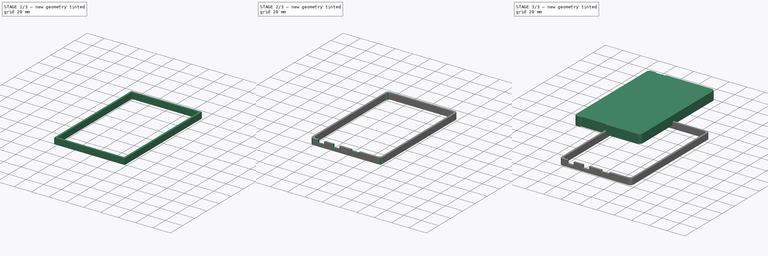
[diagram: build sequence overview — one tinted view per stage of 3, left to right]
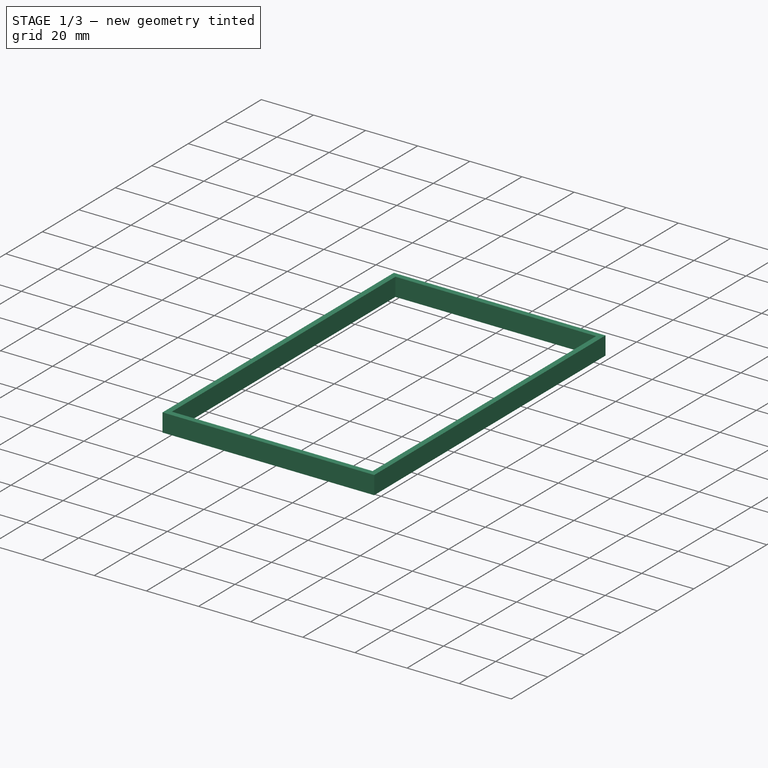
[diagram: stage 1 of 3 — iso view after this stage's code; geometry added in this stage tinted green]
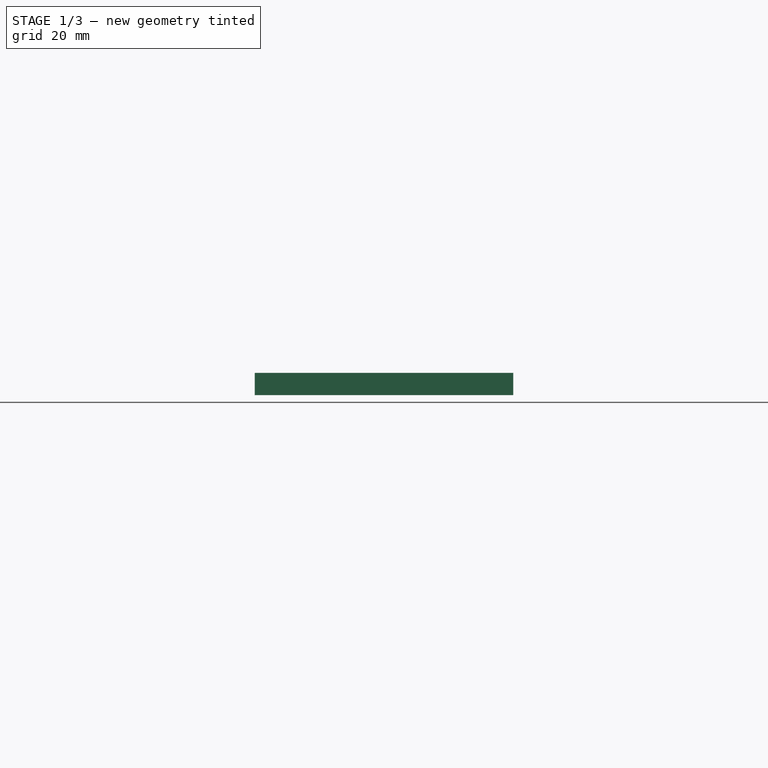
[diagram: stage 1 of 3 — front view after this stage's code; geometry added in this stage tinted green]
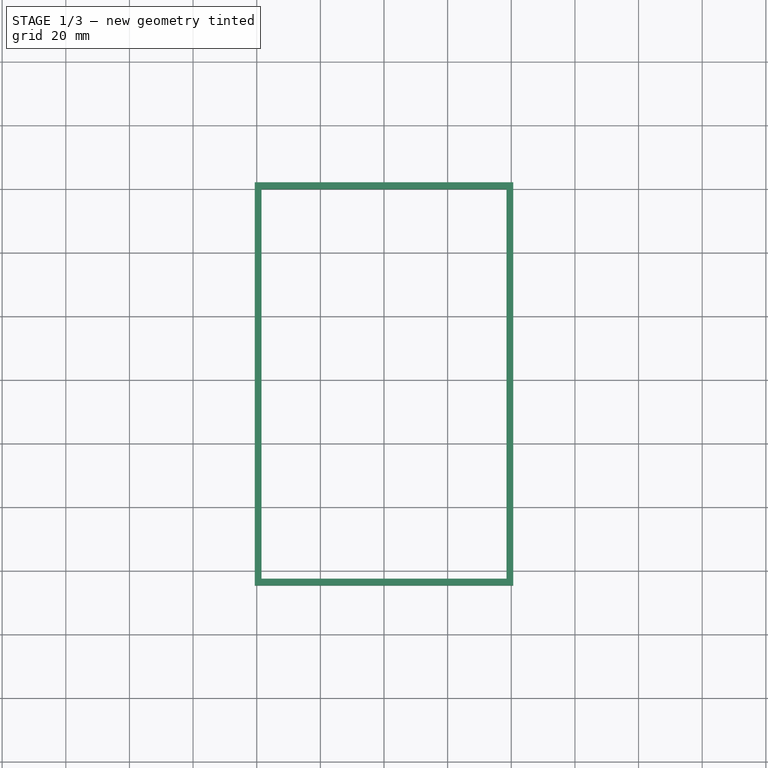
[diagram: stage 1 of 3 — top view after this stage's code; geometry added in this stage tinted green]
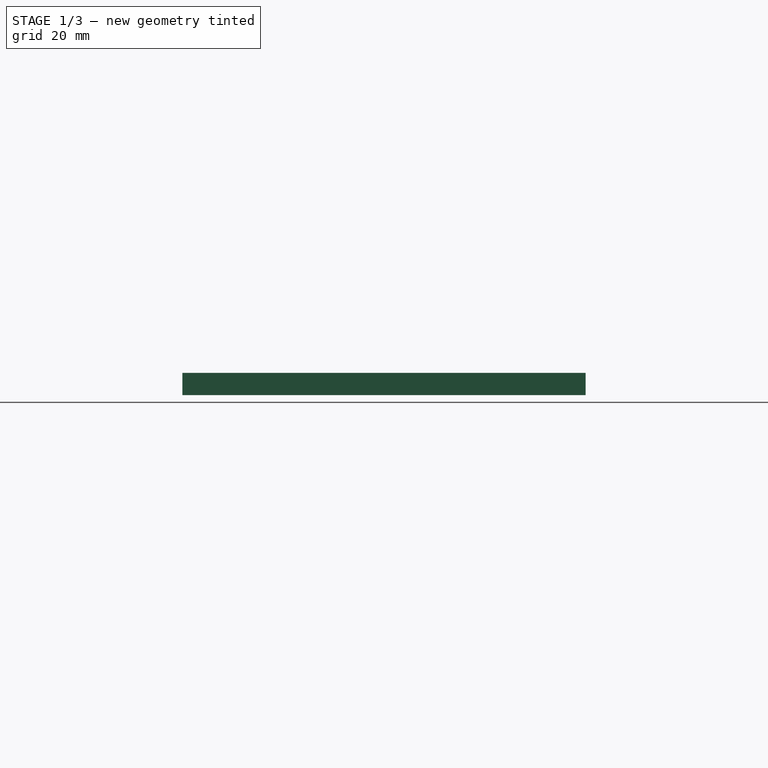
[diagram: stage 1 of 3 — right view after this stage's code; geometry added in this stage tinted green]
FCSTD DOCUMENT  (FreeCAD 1.1R39288 (Git))
Label: HackRF
License: All rights reserved
LicenseURL: https://en.wikipedia.org/wiki/All_rights_reserved
objects: Sketcher::SketchObject×7, PartDesign::Body×3, PartDesign::Pad×2, PartDesign::Pocket×2, PartDesign::Thickness×1, PartDesign::Fillet×1, PartDesign::Plane×1
note: 36 computed .brp shape members not serialized (recipe doc carries the construction recipe); baked Part::Feature solids carry a one-line shape summary decoded from their .brp

FEATURE [PartDesign::Body] Body001  label="Тело001"
  AllowCompound = false
  Group = -> [Sketch001,Sketch002,Pad]
  Origin = -> Origin001
  Tip = -> Pad
FEATURE [Sketcher::SketchObject] Sketch003
  ArcFitTolerance = 1e-06
  AttachmentSupport = -> [XZ_Plane002]
  FullyConstrained = true
  MakeInternals = false
  MapMode = 5
  Placement = pos=(0,0,0) rot=(1,0,0;1.5708rad)
  sketch-geometry (4):
    g0: LineSegment StartX=-38.5 StartY=3.5 StartZ=0 EndX=-38.5 EndY=-3.5 EndZ=0
    g1: LineSegment StartX=-38.5 StartY=-3.5 StartZ=0 EndX=38.5 EndY=-3.5 EndZ=0
    g2: LineSegment StartX=38.5 StartY=-3.5 StartZ=0 EndX=38.5 EndY=3.5 EndZ=0
    g3: LineSegment StartX=38.5 StartY=3.5 StartZ=0 EndX=-38.5 EndY=3.5 EndZ=0
  constraints (11):
    c: Coincident(g0,g1)
    c: Coincident(g1,g2)
    c: Coincident(g2,g3)
    c: Coincident(g3,g0)
    c: Vertical(g0)
    c: Vertical(g2)
    c: Horizontal(g1)
    c: Horizontal(g3)
    c: DistanceY(g0,g0) = 7
    c: DistanceX(g3,g3) = 77
    c: Symmetric(g0,g2,g-1)
FEATURE [PartDesign::Pad] Pad001
  Direction = (0,-1,0)
  Length = 122.5
  Length2 = 10
  Placement = pos=(0,0,0) rot=(1,0,0;1.5708rad)
  Profile = -> Sketch003
  ReferenceAxis = -> Sketch003 [N_Axis]
  Refine = true
  Suppressed = false
  Type = 0
FEATURE [PartDesign::Thickness] Thickness
  Base = -> Pad001 [Face4,Face2]
  BaseFeature = -> Pad001
  Intersection = true
  Join = 1
  Mode = 1
  Refine = true
  SupportTransform = false
  Suppressed = false
  Value = 2.1
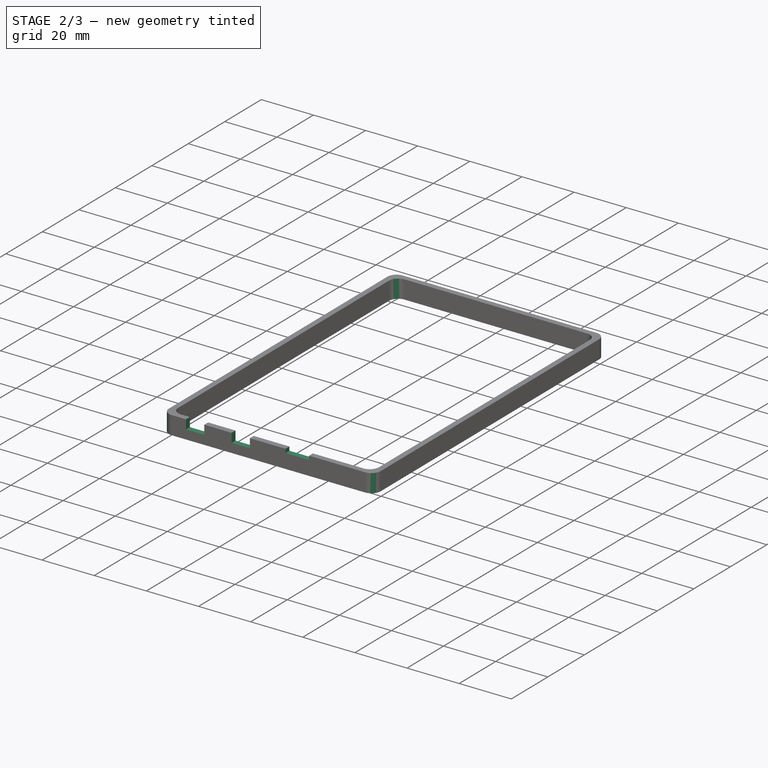
[diagram: stage 2 of 3 — iso view after this stage's code; geometry added in this stage tinted green]
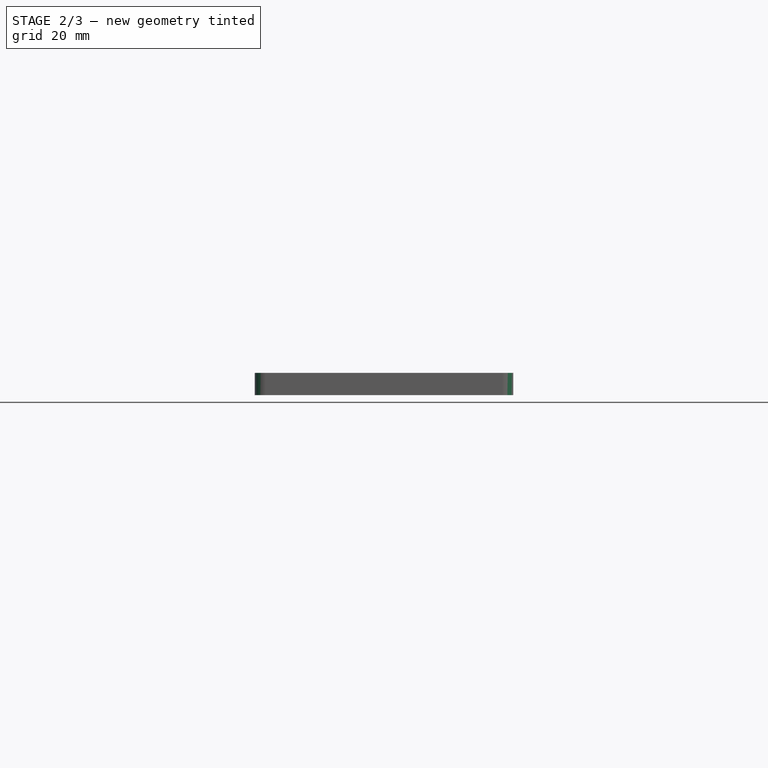
[diagram: stage 2 of 3 — front view after this stage's code; geometry added in this stage tinted green]
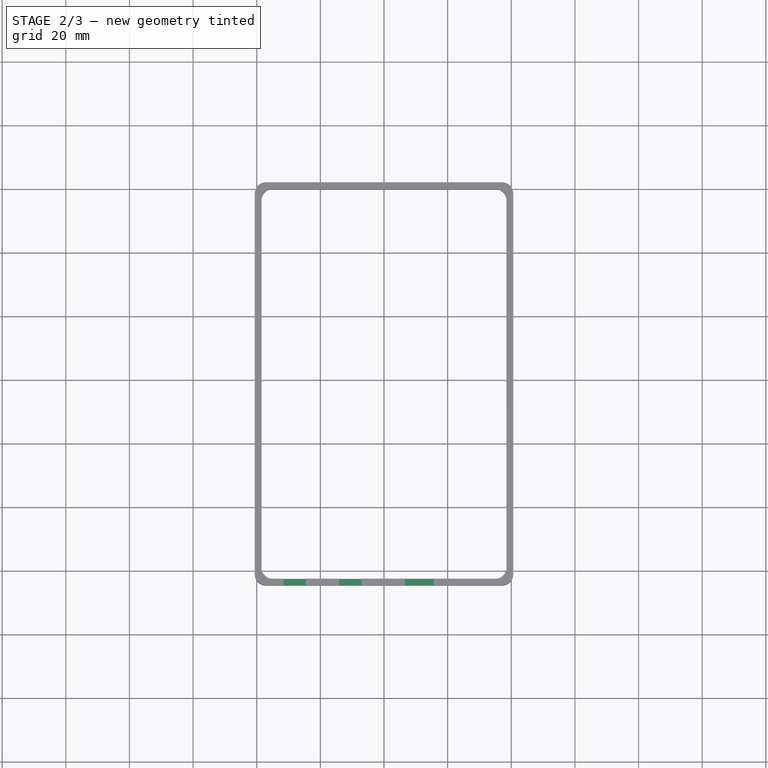
[diagram: stage 2 of 3 — top view after this stage's code; geometry added in this stage tinted green]
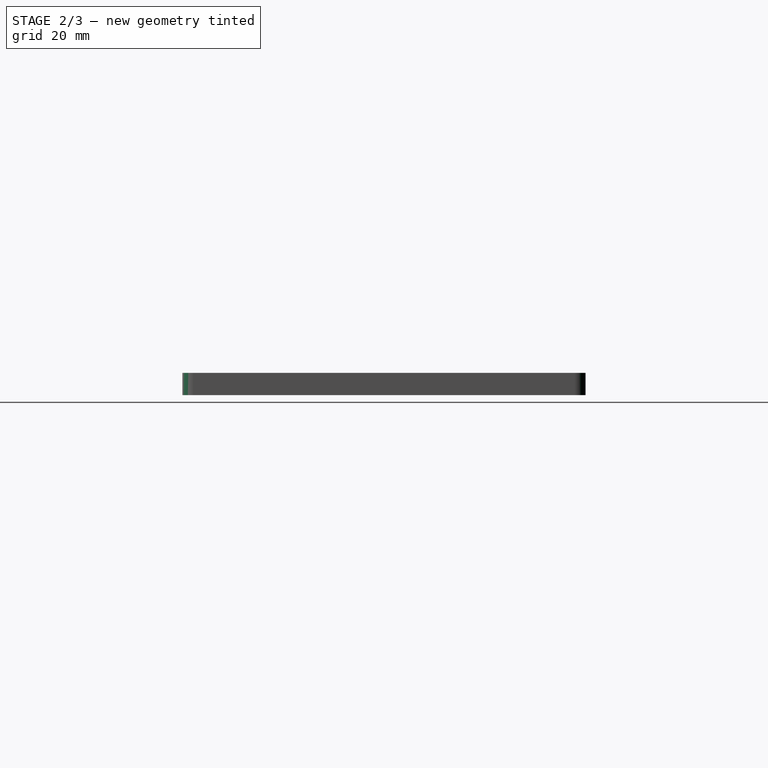
[diagram: stage 2 of 3 — right view after this stage's code; geometry added in this stage tinted green]
FEATURE [PartDesign::Fillet] Fillet
  Base = -> Thickness [Edge4,Edge10,Edge6,Edge3,Edge24,Edge19,Edge17,Edge23]
  BaseFeature = -> Thickness
  Radius = 3.5
  Refine = true
  SupportTransform = false
  Suppressed = false
  UseAllEdges = false
FEATURE [Sketcher::SketchObject] Sketch004
  ArcFitTolerance = 1e-06
  AttachmentSupport = -> [XY_Plane002]
  FullyConstrained = false
  MakeInternals = false
  MapMode = 5
  sketch-geometry (32):
    g0: LineSegment StartX=-75 StartY=65.2218 StartZ=0 EndX=-75 EndY=-48.2782 EndZ=0
    g1: LineSegment StartX=0 StartY=-48.2782 StartZ=0 EndX=0 EndY=65.2219 EndZ=0
    g2: ArcOfCircle CenterX=-71.5 CenterY=65.2218 CenterZ=0 NormalX=0 NormalY=0 NormalZ=1 AngleXU=0 Radius=3.5 StartAngle=1.5708 EndAngle=3.14159
    g3: ArcOfCircle CenterX=-71.5 CenterY=-48.2782 CenterZ=0 NormalX=0 NormalY=0 NormalZ=1 AngleXU=0 Radius=3.5 StartAngle=3.14159 EndAngle=4.71239
    g4: ArcOfCircle CenterX=-3.5 CenterY=-48.2782 CenterZ=0 NormalX=0 NormalY=0 NormalZ=1 AngleXU=0 Radius=3.5 StartAngle=4.71239 EndAngle=6.28319
    g5: ArcOfCircle CenterX=-3.5 CenterY=65.2219 CenterZ=0 NormalX=0 NormalY=0 NormalZ=1 AngleXU=0 Radius=3.5 StartAngle=1.2e-15 EndAngle=1.57919
    g6: GeomPoint [constr] X=-75 Y=68.7218 Z=0
    g7: GeomPoint [constr] X=0 Y=-51.7782 Z=0
    g8: LineSegment StartX=-71.5 StartY=-51.7782 StartZ=0 EndX=-68.35 EndY=-51.7782 EndZ=0
    g9: ArcOfCircle CenterX=-68.35 CenterY=-51.2782 CenterZ=0 NormalX=0 NormalY=0 NormalZ=1 AngleXU=0 Radius=0.5 StartAngle=4.71239 EndAngle=6.28319
    g10: ArcOfCircle CenterX=-67.35 CenterY=-51.2782 CenterZ=0 NormalX=0 NormalY=0 NormalZ=1 AngleXU=0 Radius=0.5 StartAngle=1.5708 EndAngle=3.14159
    g11: ArcOfCircle CenterX=-39.15 CenterY=-51.2782 CenterZ=0 NormalX=0 NormalY=0 NormalZ=1 AngleXU=0 Radius=0.5 StartAngle=3.14159 EndAngle=4.71239
    g12: ArcOfCircle CenterX=-40.15 CenterY=-51.2782 CenterZ=0 NormalX=0 NormalY=0 NormalZ=1 AngleXU=0 Radius=0.5 StartAngle=-2.7e-15 EndAngle=1.5708
    g13: LineSegment StartX=-39.15 StartY=-51.7782 StartZ=0 EndX=-27.15 EndY=-51.7782 EndZ=0
    g14: LineSegment StartX=-19.65 StartY=-51.7782 StartZ=0 EndX=-3.5 EndY=-51.7782 EndZ=0
    g15: LineSegment StartX=-66.9 StartY=68.7218 StartZ=0 EndX=-71.5 EndY=68.7218 EndZ=0
    g16: ArcOfCircle CenterX=-66.9 CenterY=68.2218 CenterZ=0 NormalX=0 NormalY=0 NormalZ=1 AngleXU=0 Radius=0.5 StartAngle=9.4e-15 EndAngle=1.5708
    g17: ArcOfCircle CenterX=-65.9 CenterY=68.2218 CenterZ=0 NormalX=0 NormalY=0 NormalZ=1 AngleXU=0 Radius=0.5 StartAngle=3.14159 EndAngle=4.71239
    g18: ArcOfCircle CenterX=-56.2009 CenterY=68.2218 CenterZ=0 NormalX=0 NormalY=0 NormalZ=1 AngleXU=0 Radius=0.5 StartAngle=4.71239 EndAngle=6.28319
    g19: ArcOfCircle CenterX=-55.2009 CenterY=68.2218 CenterZ=0 NormalX=0 NormalY=0 NormalZ=1 AngleXU=0 Radius=0.5 StartAngle=1.56909 EndAngle=3.14159
    g20: LineSegment StartX=-65.9 StartY=67.7218 StartZ=0 EndX=-64.5504 EndY=67.7218 EndZ=0
    g21: LineSegment StartX=-57.5504 StartY=67.7218 StartZ=0 EndX=-56.2009 EndY=67.7218 EndZ=0
    g22: LineSegment StartX=-67.35 StartY=-50.7782 StartZ=0 EndX=-66 EndY=-50.7782 EndZ=0
    g23: LineSegment StartX=-59 StartY=-50.7782 StartZ=0 EndX=-48.5 EndY=-50.7782 EndZ=0
    g24: LineSegment StartX=-41.5 StartY=-50.7782 StartZ=0 EndX=-40.15 EndY=-50.7782 EndZ=0
    g25: LineSegment StartX=-3.52937 StartY=68.7218 StartZ=0 EndX=-10 EndY=68.7218 EndZ=0
    g26: LineSegment StartX=-13.6 StartY=68.7218 StartZ=0 EndX=-23.6 EndY=68.7218 EndZ=0
    g27: LineSegment StartX=-27.2 StartY=68.7218 StartZ=0 EndX=-55.2 EndY=68.7218 EndZ=0
    g28: Circle CenterX=-3.5 CenterY=-48.2782 CenterZ=0 NormalX=0 NormalY=0 NormalZ=1 AngleXU=0 Radius=1.6
    g29: Circle CenterX=-3.5 CenterY=65.2219 CenterZ=0 NormalX=0 NormalY=0 NormalZ=1 AngleXU=0 Radius=1.6
    g30: Circle CenterX=-71.5 CenterY=65.2218 CenterZ=0 NormalX=0 NormalY=0 NormalZ=1 AngleXU=0 Radius=1.6
    g31: Circle CenterX=-71.5 CenterY=-48.2782 CenterZ=0 NormalX=0 NormalY=0 NormalZ=1 AngleXU=0 Radius=1.6
  constraints (92):
    c: Tangent(g0,g2) = -1.5708
    c: Tangent(g0,g3) = -1.5708
    c: Tangent(g1,g4) = -1.5708
    c: Tangent(g1,g5) = -1.5708
    c: Vertical(g0)
    c: Vertical(g1)
    c: Equal(g2,g3)
    c: Equal(g3,g4)
    c: Equal(g4,g5)
    c: PointOnObject(g6,g0)
    c: PointOnObject(g7,g1)
    c: Distance(g0,g1) = 75
    c: Distance(g8,g15) = 120.5
    c: Radius(g3) = 3.5
    c: PointOnObject(g7,g-2)
    c: Horizontal(g8)
    c: PointOnObject(g7,g8)
    c: Equal(g9,g10)
    c: Equal(g10,g12)
    c: Equal(g12,g11)
    c: Tangent(g9,g8) = -1.5708
    c: Tangent(g10,g9) = 1.5708
    c: Coincident(g22,g10) = 1.5708
    c: Coincident(g24,g12) = 1.5708
    c: Tangent(g12,g11) = 1.5708
    c: Coincident(g11,g13) = -1.5708
    c: Horizontal(g8,g13)
    c: Radius(g10) = 0.5
    c: Horizontal(g10,g9)
    c: DistanceX(g22,g24) = 27.2
    c: DistanceX(g0,g8) = 6.65
    c: Horizontal(g13)
    c: DistanceX(g11,g13) = 12
    c: Horizontal(g14)
    c: DistanceX(g13,g14) = 7.5
    c: Horizontal(g14,g13)
    c: Horizontal(g15)
    c: DistanceX(g0,g15) = 8.1
    c: DistanceX(g15,g27) = 11.7
    c: Tangent(g16,g15) = -1.5708
    c: Tangent(g17,g16) = 1.5708
    c: Coincident(g20,g17) = -1.5708
    c: Coincident(g21,g18) = -1.5708
    c: Tangent(g19,g18) = 1.5708
    c: Coincident(g19,g27) = -1.5708
    c: Equal(g19,g18)
    c: Equal(g18,g16)
    c: Equal(g16,g17)
    c: Equal(g16,g10)
    c: Horizontal(g16,g17)
    c: Coincident(g25,g5) = -1.5708
    c: Tangent(g15,g2) = -1.5708
    c: Tangent(g8,g3) = -1.5708
    c: Tangent(g14,g4) = -1.5708
    c: Horizontal(g18,g18)
    c: Horizontal(g12,g11)
    c: Horizontal(g21)
    c: DistanceX(g20,g21) = 7
    c: Horizontal(g15,g27)
    c: Vertical(g17,g17)
    c: Vertical(g18,g18)
    c: Horizontal(g22)
    c: Horizontal(g23)
    c: Horizontal(g24)
    c: Horizontal(g22,g23)
    c: DistanceX(g22,g23) = 7
    c: DistanceX(g23,g24) = 7
    c: DistanceX(g22,g22) = 1.35
    c: Equal(g22,g24)
    c: Vertical(g12,g12)
    c: Vertical(g11,g11)
    c: Horizontal(g24,g23)
    c: Equal(g21,g20)
    c: Horizontal(g20)
    c: Horizontal(g25)
    c: PointOnObject(g6,g25)
    c: Horizontal(g26)
    c: Horizontal(g27)
    c: DistanceX(g27,g26) = 3.6
    c: DistanceX(g26,g25) = 3.6
    c: DistanceX(g26,g26) = 10
    c: Horizontal(g27,g26)
    c: Horizontal(g26,g25)
    c: DistanceX(g25,g1) = 10
    c: Diameter(g28) = 3.2
    c: Coincident(g28,g4)
    c: Coincident(g29,g5)
    c: Coincident(g31,g3)
    c: Equal(g31,g28)
    c: Equal(g28,g29)
    c: Equal(g29,g30)
    c: Coincident(g2,g30)
FEATURE [PartDesign::Plane] DatumPlane
  AttachmentSupport = -> [Fillet]
  Length = 130.805
  MapMode = 5
  Placement = pos=(0,-124.6,0) rot=(1,0,0;1.5708rad)
  ResizeMode = 0
  Width = 65.2053
FEATURE [Sketcher::SketchObject] Sketch006
  ArcFitTolerance = 1e-06
  AttachmentSupport = -> [DatumPlane]
  ExternalGeometry = -> [Fillet]
  FullyConstrained = true
  MakeInternals = false
  MapMode = 5
  Placement = pos=(0,-124.6,0) rot=(1,0,0;1.5708rad)
  sketch-geometry (16):
    g0: LineSegment StartX=-31.6 StartY=3.5 StartZ=0 EndX=-31.6 EndY=4.26e-14 EndZ=0
    g1: LineSegment StartX=-31.6 StartY=4.25e-14 StartZ=0 EndX=-24.6 EndY=4.25e-14 EndZ=0
    g2: LineSegment StartX=-24.6 StartY=4.25e-14 StartZ=0 EndX=-24.6 EndY=3.5 EndZ=0
    g3: LineSegment StartX=-24.6 StartY=3.5 StartZ=0 EndX=-31.6 EndY=3.5 EndZ=0
    g4: LineSegment StartX=-14.1 StartY=3.5 StartZ=0 EndX=-14.1 EndY=4.26e-14 EndZ=0
    g5: LineSegment StartX=-14.1 StartY=4.25e-14 StartZ=0 EndX=-7.1 EndY=4.25e-14 EndZ=0
    g6: LineSegment StartX=-7.1 StartY=4.25e-14 StartZ=0 EndX=-7.1 EndY=3.5 EndZ=0
    g7: LineSegment StartX=-7.1 StartY=3.5 StartZ=0 EndX=-14.1 EndY=3.5 EndZ=0
    g8: LineSegment [constr] StartX=-31.6 StartY=4.25e-14 StartZ=0 EndX=-28.1 EndY=4.25e-14 EndZ=0
    g9: LineSegment [constr] StartX=-28.1 StartY=4.25e-14 StartZ=0 EndX=-24.6 EndY=4.25e-14 EndZ=0
    g10: LineSegment [constr] StartX=-14.1 StartY=4.25e-14 StartZ=0 EndX=-10.6 EndY=4.25e-14 EndZ=0
    g11: LineSegment [constr] StartX=-10.6 StartY=4.25e-14 StartZ=0 EndX=-7.1 EndY=4.25e-14 EndZ=0
    g12: LineSegment StartX=6.6 StartY=3.5 StartZ=0 EndX=6.6 EndY=2 EndZ=0
    g13: LineSegment StartX=6.6 StartY=2 StartZ=0 EndX=15.6 EndY=2 EndZ=0
    g14: LineSegment StartX=15.6 StartY=2 StartZ=0 EndX=15.6 EndY=3.5 EndZ=0
    g15: LineSegment StartX=15.6 StartY=3.5 StartZ=0 EndX=6.6 EndY=3.5 EndZ=0
  constraints (46):
    c: PointOnObject(g0,g-3)
    c: Coincident(g0,g1)
    c: Horizontal(g1)
    c: Coincident(g1,g2)
    c: Coincident(g2,g3)
    c: Coincident(g3,g0)
    c: Horizontal(g3)
    c: Coincident(g4,g5)
    c: Coincident(g5,g6)
    c: PointOnObject(g6,g-3)
    c: Coincident(g6,g7)
    c: Coincident(g7,g4)
    c: Horizontal(g7)
    c: Vertical(g0)
    c: Vertical(g4)
    c: Horizontal(g5)
    c: Vertical(g6)
    c: Vertical(g2)
    c: Coincident(g8,g0)
    c: Coincident(g9,g1)
    c: Equal(g9,g8)
    c: Coincident(g9,g8)
    c: Equal(g9,g2)
    c: PointOnObject(g8,g1)
    c: Coincident(g10,g4)
    c: Coincident(g11,g5)
    c: Coincident(g11,g10)
    c: Equal(g11,g6)
    c: Horizontal(g1,g4)
    c: Distance(g-6,g0) = 5.5
    c: DistanceX(g3,g3) = 7
    c: Equal(g11,g10)
    c: PointOnObject(g10,g5)
    c: DistanceX(g2,g4) = 10.5
    c: PointOnObject(g12,g-3)
    c: Coincident(g12,g13)
    c: Coincident(g13,g14)
    c: Coincident(g14,g15)
    c: Coincident(g15,g12)
    c: Horizontal(g15)
    c: Horizontal(g13)
    c: Vertical(g12)
    c: DistanceX(g6,g12) = 13.7
    c: DistanceX(g15,g15) = 9
    c: Vertical(g14)
    c: DistanceY(g14,g14) = 1.5
FEATURE [PartDesign::Pocket] Pocket
  BaseFeature = -> Fillet
  Direction = (0,1,-2e-16)
  Length = 5
  Length2 = 5
  Profile = -> Sketch006
  ReferenceAxis = -> Sketch006 [N_Axis]
  Refine = true
  Suppressed = false
  Type = 2
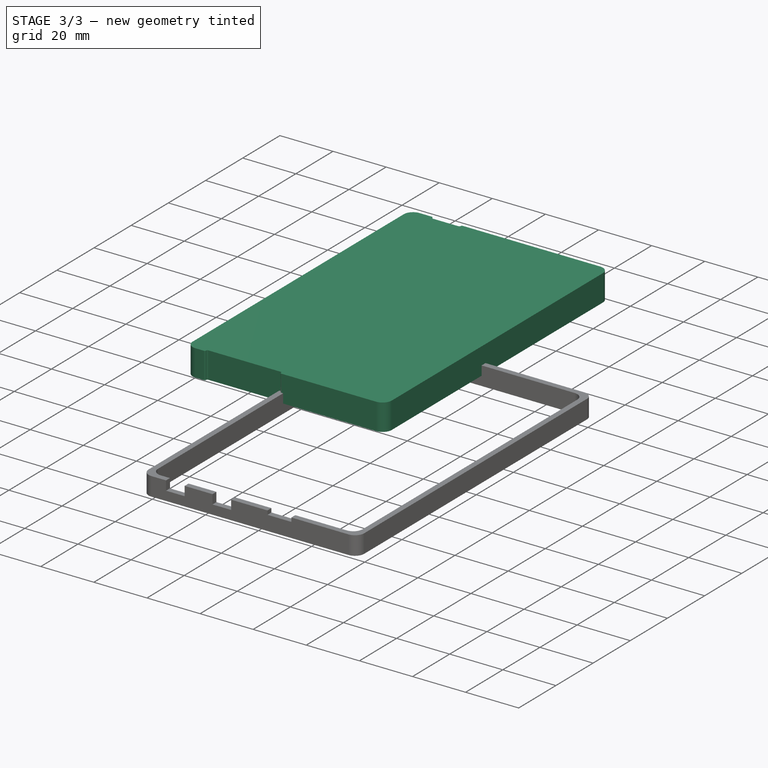
[diagram: stage 3 of 3 — iso view after this stage's code; geometry added in this stage tinted green]
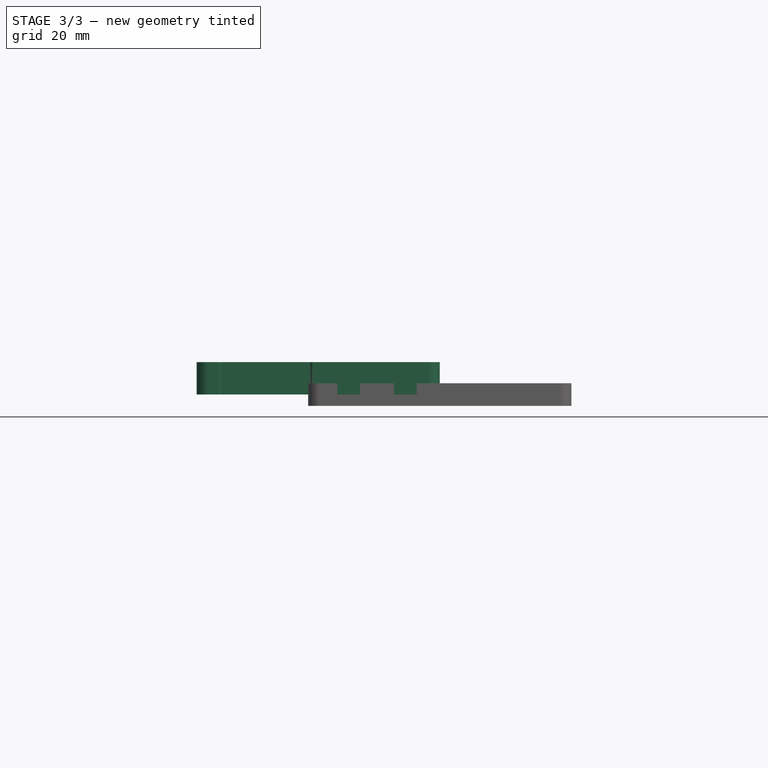
[diagram: stage 3 of 3 — front view after this stage's code; geometry added in this stage tinted green]
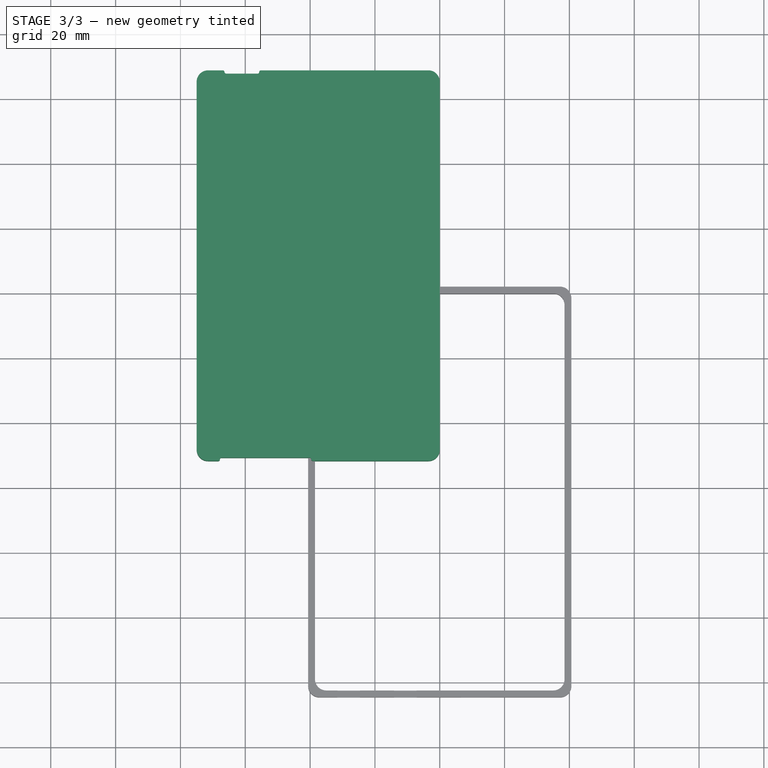
[diagram: stage 3 of 3 — top view after this stage's code; geometry added in this stage tinted green]
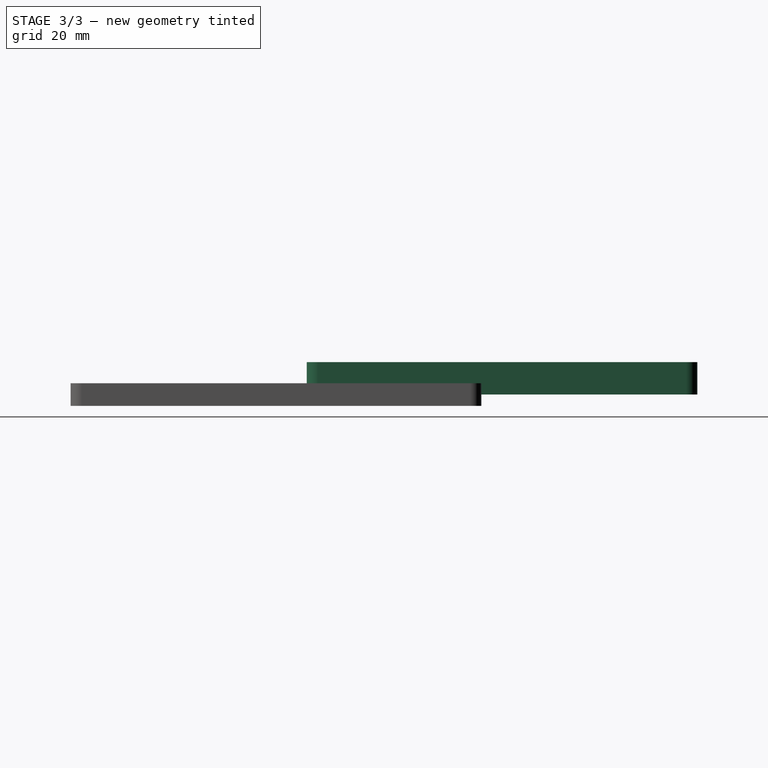
[diagram: stage 3 of 3 — right view after this stage's code; geometry added in this stage tinted green]
FEATURE [Sketcher::SketchObject] Sketch
  ArcFitTolerance = 1e-06
  AttachmentSupport = -> [XY_Plane]
  FullyConstrained = false
  MakeInternals = false
  MapMode = 5
  sketch-geometry (32):
    g0: LineSegment StartX=-75 StartY=65.2218 StartZ=0 EndX=-75 EndY=-48.2782 EndZ=0
    g1: LineSegment StartX=0 StartY=-48.2782 StartZ=0 EndX=0 EndY=65.2219 EndZ=0
    g2: ArcOfCircle CenterX=-71.5 CenterY=65.2218 CenterZ=0 NormalX=0 NormalY=0 NormalZ=1 AngleXU=0 Radius=3.5 StartAngle=1.5708 EndAngle=3.14159
    g3: ArcOfCircle CenterX=-71.5 CenterY=-48.2782 CenterZ=0 NormalX=0 NormalY=0 NormalZ=1 AngleXU=0 Radius=3.5 StartAngle=3.14159 EndAngle=4.71239
    g4: ArcOfCircle CenterX=-3.5 CenterY=-48.2782 CenterZ=0 NormalX=0 NormalY=0 NormalZ=1 AngleXU=0 Radius=3.5 StartAngle=4.71239 EndAngle=6.28319
    g5: ArcOfCircle CenterX=-3.5 CenterY=65.2219 CenterZ=0 NormalX=0 NormalY=0 NormalZ=1 AngleXU=0 Radius=3.5 StartAngle=1.2e-15 EndAngle=1.57919
    g6: GeomPoint [constr] X=-75 Y=68.7218 Z=0
    g7: GeomPoint [constr] X=0 Y=-51.7782 Z=0
    g8: LineSegment StartX=-71.5 StartY=-51.7782 StartZ=0 EndX=-68.35 EndY=-51.7782 EndZ=0
    g9: ArcOfCircle CenterX=-68.35 CenterY=-51.2782 CenterZ=0 NormalX=0 NormalY=0 NormalZ=1 AngleXU=0 Radius=0.5 StartAngle=4.71239 EndAngle=6.28319
    g10: ArcOfCircle CenterX=-67.35 CenterY=-51.2782 CenterZ=0 NormalX=0 NormalY=0 NormalZ=1 AngleXU=0 Radius=0.5 StartAngle=1.5708 EndAngle=3.14159
    g11: ArcOfCircle CenterX=-39.15 CenterY=-51.2782 CenterZ=0 NormalX=0 NormalY=0 NormalZ=1 AngleXU=0 Radius=0.5 StartAngle=3.14159 EndAngle=4.71239
    g12: ArcOfCircle CenterX=-40.15 CenterY=-51.2782 CenterZ=0 NormalX=0 NormalY=0 NormalZ=1 AngleXU=0 Radius=0.5 StartAngle=-2.7e-15 EndAngle=1.5708
    g13: LineSegment StartX=-39.15 StartY=-51.7782 StartZ=0 EndX=-27.15 EndY=-51.7782 EndZ=0
    g14: LineSegment StartX=-19.65 StartY=-51.7782 StartZ=0 EndX=-3.5 EndY=-51.7782 EndZ=0
    g15: LineSegment StartX=-66.9 StartY=68.7218 StartZ=0 EndX=-71.5 EndY=68.7218 EndZ=0
    g16: ArcOfCircle CenterX=-66.9 CenterY=68.2218 CenterZ=0 NormalX=0 NormalY=0 NormalZ=1 AngleXU=0 Radius=0.5 StartAngle=9.4e-15 EndAngle=1.5708
    g17: ArcOfCircle CenterX=-65.9 CenterY=68.2218 CenterZ=0 NormalX=0 NormalY=0 NormalZ=1 AngleXU=0 Radius=0.5 StartAngle=3.14159 EndAngle=4.71239
    g18: ArcOfCircle CenterX=-56.2009 CenterY=68.2218 CenterZ=0 NormalX=0 NormalY=0 NormalZ=1 AngleXU=0 Radius=0.5 StartAngle=4.71239 EndAngle=6.28319
    g19: ArcOfCircle CenterX=-55.2009 CenterY=68.2218 CenterZ=0 NormalX=0 NormalY=0 NormalZ=1 AngleXU=0 Radius=0.5 StartAngle=1.56909 EndAngle=3.14159
    g20: LineSegment StartX=-65.9 StartY=67.7218 StartZ=0 EndX=-64.5504 EndY=67.7218 EndZ=0
    g21: LineSegment StartX=-57.5504 StartY=67.7218 StartZ=0 EndX=-56.2009 EndY=67.7218 EndZ=0
    g22: LineSegment StartX=-67.35 StartY=-50.7782 StartZ=0 EndX=-66 EndY=-50.7782 EndZ=0
    g23: LineSegment StartX=-59 StartY=-50.7782 StartZ=0 EndX=-48.5 EndY=-50.7782 EndZ=0
    g24: LineSegment StartX=-41.5 StartY=-50.7782 StartZ=0 EndX=-40.15 EndY=-50.7782 EndZ=0
    g25: LineSegment StartX=-3.52937 StartY=68.7218 StartZ=0 EndX=-10 EndY=68.7218 EndZ=0
    g26: LineSegment StartX=-13.6 StartY=68.7218 StartZ=0 EndX=-23.6 EndY=68.7218 EndZ=0
    g27: LineSegment StartX=-27.2 StartY=68.7218 StartZ=0 EndX=-55.2 EndY=68.7218 EndZ=0
    g28: Circle CenterX=-3.5 CenterY=-48.2782 CenterZ=0 NormalX=0 NormalY=0 NormalZ=1 AngleXU=0 Radius=1.6
    g29: Circle CenterX=-3.5 CenterY=65.2219 CenterZ=0 NormalX=0 NormalY=0 NormalZ=1 AngleXU=0 Radius=1.6
    g30: Circle CenterX=-71.5 CenterY=65.2218 CenterZ=0 NormalX=0 NormalY=0 NormalZ=1 AngleXU=0 Radius=1.6
    g31: Circle CenterX=-71.5 CenterY=-48.2782 CenterZ=0 NormalX=0 NormalY=0 NormalZ=1 AngleXU=0 Radius=1.6
  constraints (92):
    c: Tangent(g0,g2) = -1.5708
    c: Tangent(g0,g3) = -1.5708
    c: Tangent(g1,g4) = -1.5708
    c: Tangent(g1,g5) = -1.5708
    c: Vertical(g0)
    c: Vertical(g1)
    c: Equal(g2,g3)
    c: Equal(g3,g4)
    c: Equal(g4,g5)
    c: PointOnObject(g6,g0)
    c: PointOnObject(g7,g1)
    c: Distance(g0,g1) = 75
    c: Distance(g8,g15) = 120.5
    c: Radius(g3) = 3.5
    c: PointOnObject(g7,g-2)
    c: Horizontal(g8)
    c: PointOnObject(g7,g8)
    c: Equal(g9,g10)
    c: Equal(g10,g12)
    c: Equal(g12,g11)
    c: Tangent(g9,g8) = -1.5708
    c: Tangent(g10,g9) = 1.5708
    c: Coincident(g22,g10) = 1.5708
    c: Coincident(g24,g12) = 1.5708
    c: Tangent(g12,g11) = 1.5708
    c: Coincident(g11,g13) = -1.5708
    c: Horizontal(g8,g13)
    c: Radius(g10) = 0.5
    c: Horizontal(g10,g9)
    c: DistanceX(g22,g24) = 27.2
    c: DistanceX(g0,g8) = 6.65
    c: Horizontal(g13)
    c: DistanceX(g11,g13) = 12
    c: Horizontal(g14)
    c: DistanceX(g13,g14) = 7.5
    c: Horizontal(g14,g13)
    c: Horizontal(g15)
    c: DistanceX(g0,g15) = 8.1
    c: DistanceX(g15,g27) = 11.7
    c: Tangent(g16,g15) = -1.5708
    c: Tangent(g17,g16) = 1.5708
    c: Coincident(g20,g17) = -1.5708
    c: Coincident(g21,g18) = -1.5708
    c: Tangent(g19,g18) = 1.5708
    c: Coincident(g19,g27) = -1.5708
    c: Equal(g19,g18)
    c: Equal(g18,g16)
    c: Equal(g16,g17)
    c: Equal(g16,g10)
    c: Horizontal(g16,g17)
    c: Coincident(g25,g5) = -1.5708
    c: Tangent(g15,g2) = -1.5708
    c: Tangent(g8,g3) = -1.5708
    c: Tangent(g14,g4) = -1.5708
    c: Horizontal(g18,g18)
    c: Horizontal(g12,g11)
    c: Horizontal(g21)
    c: DistanceX(g20,g21) = 7
    c: Horizontal(g15,g27)
    c: Vertical(g17,g17)
    c: Vertical(g18,g18)
    c: Horizontal(g22)
    c: Horizontal(g23)
    c: Horizontal(g24)
    c: Horizontal(g22,g23)
    c: DistanceX(g22,g23) = 7
    c: DistanceX(g23,g24) = 7
    c: DistanceX(g22,g22) = 1.35
    c: Equal(g22,g24)
    c: Vertical(g12,g12)
    c: Vertical(g11,g11)
    c: Horizontal(g24,g23)
    c: Equal(g21,g20)
    c: Horizontal(g20)
    c: Horizontal(g25)
    c: PointOnObject(g6,g25)
    c: Horizontal(g26)
    c: Horizontal(g27)
    c: DistanceX(g27,g26) = 3.6
    c: DistanceX(g26,g25) = 3.6
    c: DistanceX(g26,g26) = 10
    c: Horizontal(g27,g26)
    c: Horizontal(g26,g25)
    c: DistanceX(g25,g1) = 10
    c: Diameter(g28) = 3.2
    c: Coincident(g28,g4)
    c: Coincident(g29,g5)
    c: Coincident(g31,g3)
    c: Equal(g31,g28)
    c: Equal(g28,g29)
    c: Equal(g29,g30)
    c: Coincident(g2,g30)
FEATURE [PartDesign::Body] Body  label="Тело"
  AllowCompound = false
  Group = -> [Sketch]
  Origin = -> Origin
FEATURE [Sketcher::SketchObject] Sketch001
  ArcFitTolerance = 1e-06
  AttachmentSupport = -> [XY_Plane001]
  FullyConstrained = false
  MakeInternals = false
  MapMode = 5
  sketch-geometry (34):
    g0: LineSegment StartX=-75 StartY=65.2218 StartZ=0 EndX=-75 EndY=-48.2782 EndZ=0
    g1: LineSegment StartX=0 StartY=-48.2782 StartZ=0 EndX=0 EndY=65.2219 EndZ=0
    g2: ArcOfCircle CenterX=-71.5 CenterY=65.2218 CenterZ=0 NormalX=0 NormalY=0 NormalZ=1 AngleXU=0 Radius=3.5 StartAngle=1.5708 EndAngle=3.14159
    g3: ArcOfCircle CenterX=-71.5 CenterY=-48.2782 CenterZ=0 NormalX=0 NormalY=0 NormalZ=1 AngleXU=0 Radius=3.5 StartAngle=3.14159 EndAngle=4.71239
    g4: ArcOfCircle CenterX=-3.5 CenterY=-48.2782 CenterZ=0 NormalX=0 NormalY=0 NormalZ=1 AngleXU=0 Radius=3.5 StartAngle=4.71239 EndAngle=6.28319
    g5: ArcOfCircle CenterX=-3.5 CenterY=65.2219 CenterZ=0 NormalX=0 NormalY=0 NormalZ=1 AngleXU=0 Radius=3.5 StartAngle=1.2e-15 EndAngle=1.57919
    g6: GeomPoint [constr] X=-75 Y=68.7218 Z=0
    g7: GeomPoint [constr] X=0 Y=-51.7782 Z=0
    g8: LineSegment StartX=-71.5 StartY=-51.7782 StartZ=0 EndX=-68.35 EndY=-51.7782 EndZ=0
    g9: ArcOfCircle CenterX=-68.35 CenterY=-51.2782 CenterZ=0 NormalX=0 NormalY=0 NormalZ=1 AngleXU=0 Radius=0.5 StartAngle=4.71239 EndAngle=6.28319
    g10: ArcOfCircle CenterX=-67.35 CenterY=-51.2782 CenterZ=0 NormalX=0 NormalY=0 NormalZ=1 AngleXU=0 Radius=0.5 StartAngle=1.5708 EndAngle=3.14159
    g11: ArcOfCircle CenterX=-39.15 CenterY=-51.2782 CenterZ=0 NormalX=0 NormalY=0 NormalZ=1 AngleXU=0 Radius=0.5 StartAngle=3.14159 EndAngle=4.71239
    g12: ArcOfCircle CenterX=-40.15 CenterY=-51.2782 CenterZ=0 NormalX=0 NormalY=0 NormalZ=1 AngleXU=0 Radius=0.5 StartAngle=-2.7e-15 EndAngle=1.5708
    g13: LineSegment StartX=-39.15 StartY=-51.7782 StartZ=0 EndX=-27.15 EndY=-51.7782 EndZ=0
    g14: LineSegment StartX=-19.65 StartY=-51.7782 StartZ=0 EndX=-3.5 EndY=-51.7782 EndZ=0
    g15: LineSegment StartX=-66.9 StartY=68.7218 StartZ=0 EndX=-71.5 EndY=68.7218 EndZ=0
    g16: ArcOfCircle CenterX=-66.9 CenterY=68.2218 CenterZ=0 NormalX=0 NormalY=0 NormalZ=1 AngleXU=0 Radius=0.5 StartAngle=8.1e-15 EndAngle=1.5708
    g17: ArcOfCircle CenterX=-65.9 CenterY=68.2218 CenterZ=0 NormalX=0 NormalY=0 NormalZ=1 AngleXU=0 Radius=0.5 StartAngle=3.14159 EndAngle=4.71239
    g18: ArcOfCircle CenterX=-56.2 CenterY=68.2218 CenterZ=0 NormalX=0 NormalY=0 NormalZ=1 AngleXU=0 Radius=0.5 StartAngle=4.71239 EndAngle=6.28319
    g19: ArcOfCircle CenterX=-55.2 CenterY=68.2218 CenterZ=0 NormalX=0 NormalY=0 NormalZ=1 AngleXU=0 Radius=0.5 StartAngle=1.57079 EndAngle=3.14159
    g20: LineSegment StartX=-65.9 StartY=67.7218 StartZ=0 EndX=-64.55 EndY=67.7218 EndZ=0
    g21: LineSegment StartX=-57.55 StartY=67.7218 StartZ=0 EndX=-56.2 EndY=67.7218 EndZ=0
    g22: LineSegment StartX=-67.35 StartY=-50.7782 StartZ=0 EndX=-66 EndY=-50.7782 EndZ=0
    g23: LineSegment StartX=-59 StartY=-50.7782 StartZ=0 EndX=-48.5 EndY=-50.7782 EndZ=0
    g24: LineSegment StartX=-41.5 StartY=-50.7782 StartZ=0 EndX=-40.15 EndY=-50.7782 EndZ=0
    g25: LineSegment StartX=-3.52937 StartY=68.7218 StartZ=0 EndX=-10 EndY=68.7218 EndZ=0
    g26: LineSegment StartX=-13.6 StartY=68.7218 StartZ=0 EndX=-23.6 EndY=68.7218 EndZ=0
    g27: LineSegment StartX=-27.2 StartY=68.7218 StartZ=0 EndX=-55.2 EndY=68.7218 EndZ=0
    g28: LineSegment StartX=-57.55 StartY=67.7218 StartZ=0 EndX=-64.55 EndY=67.7218 EndZ=0
    g29: LineSegment StartX=-27.2 StartY=68.7218 StartZ=0 EndX=-23.6 EndY=68.7218 EndZ=0
    g30: LineSegment StartX=-13.6 StartY=68.7218 StartZ=0 EndX=-10 EndY=68.7218 EndZ=0
    g31: LineSegment StartX=-27.15 StartY=-51.7782 StartZ=0 EndX=-19.65 EndY=-51.7782 EndZ=0
    g32: LineSegment StartX=-41.5 StartY=-50.7782 StartZ=0 EndX=-48.5 EndY=-50.7782 EndZ=0
    g33: LineSegment StartX=-59 StartY=-50.7782 StartZ=0 EndX=-66 EndY=-50.7782 EndZ=0
  constraints (97):
    c: Tangent(g0,g2) = -1.5708
    c: Tangent(g0,g3) = -1.5708
    c: Tangent(g1,g4) = -1.5708
    c: Tangent(g1,g5) = -1.5708
    c: Vertical(g0)
    c: Vertical(g1)
    c: Equal(g2,g3)
    c: Equal(g3,g4)
    c: Equal(g4,g5)
    c: PointOnObject(g6,g0)
    c: PointOnObject(g7,g1)
    c: Distance(g0,g1) = 75
    c: Distance(g8,g15) = 120.5
    c: Radius(g3) = 3.5
    c: PointOnObject(g7,g-2)
    c: Horizontal(g8)
    c: PointOnObject(g7,g8)
    c: Equal(g9,g10)
    c: Equal(g10,g12)
    c: Equal(g12,g11)
    c: Tangent(g9,g8) = -1.5708
    c: Tangent(g10,g9) = 1.5708
    c: Coincident(g22,g10) = 1.5708
    c: Coincident(g24,g12) = 1.5708
    c: Tangent(g12,g11) = 1.5708
    c: Coincident(g11,g13) = -1.5708
    c: Horizontal(g8,g13)
    c: Radius(g10) = 0.5
    c: Horizontal(g10,g9)
    c: DistanceX(g22,g24) = 27.2
    c: DistanceX(g0,g8) = 6.65
    c: Horizontal(g13)
    c: DistanceX(g11,g13) = 12
    c: Horizontal(g14)
    c: DistanceX(g13,g14) = 7.5
    c: Horizontal(g14,g13)
    c: Horizontal(g15)
    c: DistanceX(g0,g15) = 8.1
    c: DistanceX(g15,g27) = 11.7
    c: Tangent(g16,g15) = -1.5708
    c: Tangent(g17,g16) = 1.5708
    c: Coincident(g20,g17) = -1.5708
    c: Coincident(g21,g18) = -1.5708
    c: Tangent(g19,g18) = 1.5708
    c: Coincident(g19,g27) = -1.5708
    c: Equal(g19,g18)
    c: Equal(g18,g16)
    c: Equal(g16,g17)
    c: Equal(g16,g10)
    c: Horizontal(g16,g17)
    c: Coincident(g25,g5) = -1.5708
    c: Tangent(g15,g2) = -1.5708
    c: Tangent(g8,g3) = -1.5708
    c: Tangent(g14,g4) = -1.5708
    c: Horizontal(g18,g18)
    c: Horizontal(g12,g11)
    c: Horizontal(g21)
    c: DistanceX(g20,g21) = 7
    c: Horizontal(g15,g27)
    c: Vertical(g17,g17)
    c: Vertical(g18,g18)
    c: Horizontal(g22)
    c: Horizontal(g23)
    c: Horizontal(g24)
    c: Horizontal(g22,g23)
    c: DistanceX(g22,g23) = 7
    c: DistanceX(g23,g24) = 7
    c: DistanceX(g22,g22) = 1.35
    c: Equal(g22,g24)
    c: Vertical(g12,g12)
    c: Vertical(g11,g11)
    c: Horizontal(g24,g23)
    c: Equal(g21,g20)
    c: Horizontal(g20)
    c: Horizontal(g25)
    c: PointOnObject(g6,g25)
    c: Horizontal(g26)
    c: Horizontal(g27)
    c: DistanceX(g27,g26) = 3.6
    c: DistanceX(g26,g25) = 3.6
    c: DistanceX(g26,g26) = 10
    c: Horizontal(g27,g26)
    c: Horizontal(g26,g25)
    c: DistanceX(g25,g1) = 10
    c: Coincident(g28,g21)
    c: Coincident(g28,g20)
    c: Horizontal(g28)
    c: Coincident(g29,g27)
    c: Coincident(g29,g26)
    c: Coincident(g30,g26)
    c: Coincident(g30,g25)
    c: Coincident(g31,g13)
    c: Coincident(g31,g14)
    c: Coincident(g32,g24)
    c: Coincident(g32,g23)
    c: Coincident(g33,g23)
    c: Coincident(g33,g22)
FEATURE [Sketcher::SketchObject] Sketch002
  ArcFitTolerance = 1e-06
  AttachmentSupport = -> [XY_Plane001]
  ExternalGeometry = -> [Sketch001]
  FullyConstrained = false
  MakeInternals = false
  MapMode = 5
  sketch-geometry (24):
    g0: LineSegment StartX=-27.15 StartY=-43.3313 StartZ=0 EndX=-27.15 EndY=-59.9731 EndZ=0
    g1: LineSegment StartX=-27.15 StartY=-59.9731 StartZ=0 EndX=-19.65 EndY=-59.9731 EndZ=0
    g2: LineSegment StartX=-19.65 StartY=-59.9731 StartZ=0 EndX=-19.65 EndY=-43.3313 EndZ=0
    g3: LineSegment StartX=-19.65 StartY=-43.3313 StartZ=0 EndX=-27.15 EndY=-43.3313 EndZ=0
    g4: LineSegment StartX=-66 StartY=-47.2126 StartZ=0 EndX=-66 EndY=-54.9919 EndZ=0
    g5: LineSegment StartX=-66 StartY=-54.9919 StartZ=0 EndX=-59 EndY=-54.9919 EndZ=0
    g6: LineSegment StartX=-59 StartY=-54.9919 StartZ=0 EndX=-59 EndY=-47.2126 EndZ=0
    g7: LineSegment StartX=-59 StartY=-47.2126 StartZ=0 EndX=-66 EndY=-47.2126 EndZ=0
    g8: LineSegment StartX=-48.5 StartY=-47.4077 StartZ=0 EndX=-48.5 EndY=-55.3219 EndZ=0
    g9: LineSegment StartX=-48.5 StartY=-55.3219 StartZ=0 EndX=-41.5 EndY=-55.3219 EndZ=0
    g10: LineSegment StartX=-41.5 StartY=-55.3219 StartZ=0 EndX=-41.5 EndY=-47.4077 EndZ=0
    g11: LineSegment StartX=-41.5 StartY=-47.4077 StartZ=0 EndX=-48.5 EndY=-47.4077 EndZ=0
    g12: LineSegment StartX=-64.5504 StartY=72.434 StartZ=0 EndX=-64.5504 EndY=64.0641 EndZ=0
    g13: LineSegment StartX=-64.5504 StartY=64.0641 StartZ=0 EndX=-57.5504 EndY=64.0641 EndZ=0
    g14: LineSegment StartX=-57.5504 StartY=64.0641 StartZ=0 EndX=-57.5504 EndY=72.434 EndZ=0
    g15: LineSegment StartX=-57.5504 StartY=72.434 StartZ=0 EndX=-64.5504 EndY=72.434 EndZ=0
    g16: LineSegment StartX=-27.2 StartY=70.178 StartZ=0 EndX=-27.2 EndY=66.4949 EndZ=0
    g17: LineSegment StartX=-27.2 StartY=66.4949 StartZ=0 EndX=-23.6 EndY=66.4949 EndZ=0
    g18: LineSegment StartX=-23.6 StartY=66.4949 StartZ=0 EndX=-23.6 EndY=70.178 EndZ=0
    g19: LineSegment StartX=-23.6 StartY=70.178 StartZ=0 EndX=-27.2 EndY=70.178 EndZ=0
    g20: LineSegment StartX=-13.6 StartY=70.1044 StartZ=0 EndX=-13.6 EndY=66.8632 EndZ=0
    g21: LineSegment StartX=-13.6 StartY=66.8632 StartZ=0 EndX=-10 EndY=66.8632 EndZ=0
    g22: LineSegment StartX=-10 StartY=66.8632 StartZ=0 EndX=-10 EndY=70.1044 EndZ=0
    g23: LineSegment StartX=-10 StartY=70.1044 StartZ=0 EndX=-13.6 EndY=70.1044 EndZ=0
  constraints (48):
    c: Coincident(g0,g1)
    c: Coincident(g1,g2)
    c: Coincident(g2,g3)
    c: Coincident(g3,g0)
    c: Vertical(g0)
    c: Vertical(g2)
    c: Horizontal(g1)
    c: Horizontal(g3)
    c: Coincident(g4,g5)
    c: Coincident(g5,g6)
    c: Coincident(g6,g7)
    c: Coincident(g7,g4)
    c: Vertical(g4)
    c: Vertical(g6)
    c: Horizontal(g5)
    c: Horizontal(g7)
    c: Coincident(g8,g9)
    c: Coincident(g9,g10)
    c: Coincident(g10,g11)
    c: Coincident(g11,g8)
    c: Vertical(g8)
    c: Vertical(g10)
    c: Horizontal(g9)
    c: Horizontal(g11)
    c: Coincident(g12,g13)
    c: Coincident(g13,g14)
    c: Coincident(g14,g15)
    c: Coincident(g15,g12)
    c: Vertical(g12)
    c: Vertical(g14)
    c: Horizontal(g13)
    c: Horizontal(g15)
    c: Coincident(g16,g17)
    c: Coincident(g17,g18)
    c: Coincident(g18,g19)
    c: Coincident(g19,g16)
    c: Vertical(g16)
    c: Vertical(g18)
    c: Horizontal(g17)
    c: Horizontal(g19)
    c: Coincident(g20,g21)
    c: Coincident(g21,g22)
    c: Coincident(g22,g23)
    c: Coincident(g23,g20)
    c: Vertical(g20)
    c: Vertical(g22)
    c: Horizontal(g21)
    c: Horizontal(g23)
FEATURE [PartDesign::Pad] Pad
  Direction = (0,0,1)
  Length = 10
  Length2 = 10
  Profile = -> Sketch001
  ReferenceAxis = -> Sketch001 [N_Axis]
  Refine = true
  Suppressed = false
  Type = 0
FEATURE [Sketcher::SketchObject] Sketch007
  ArcFitTolerance = 1e-06
  AttachmentSupport = -> [Pocket]
  ExternalGeometry = -> [Pocket]
  FullyConstrained = true
  MakeInternals = false
  MapMode = 5
  Placement = pos=(0,2.1,0) rot=(0,0.707107,0.707107;3.14159rad)
  sketch-geometry (6):
    g0: LineSegment StartX=23.15 StartY=3.5 StartZ=0 EndX=23.15 EndY=1.69e-14 EndZ=0
    g1: LineSegment StartX=23.15 StartY=1.69e-14 StartZ=0 EndX=30.15 EndY=1.69e-14 EndZ=0
    g2: LineSegment StartX=30.15 StartY=1.69e-14 StartZ=0 EndX=30.15 EndY=3.5 EndZ=0
    g3: LineSegment StartX=30.15 StartY=3.5 StartZ=0 EndX=23.15 EndY=3.5 EndZ=0
    g4: LineSegment [constr] StartX=23.15 StartY=1.69e-14 StartZ=0 EndX=26.65 EndY=1.69e-14 EndZ=0
    g5: LineSegment [constr] StartX=26.65 StartY=1.69e-14 StartZ=0 EndX=30.15 EndY=1.69e-14 EndZ=0
  constraints (17):
    c: Coincident(g0,g1)
    c: Coincident(g1,g2)
    c: Coincident(g2,g3)
    c: Coincident(g3,g0)
    c: Vertical(g0)
    c: Vertical(g2)
    c: Horizontal(g1)
    c: Horizontal(g3)
    c: PointOnObject(g0,g-3)
    c: Coincident(g0,g4)
    c: Coincident(g4,g5)
    c: Coincident(g5,g1)
    c: Equal(g5,g4)
    c: Equal(g5,g2)
    c: PointOnObject(g4,g1)
    c: DistanceX(g3,g3) = 7
    c: DistanceX(g2,g-3) = 6.95
FEATURE [PartDesign::Pocket] Pocket001
  BaseFeature = -> Pocket
  Direction = (0,-1,2e-16)
  Length = 5
  Length2 = 5
  Profile = -> Sketch007
  ReferenceAxis = -> Sketch007 [N_Axis]
  Refine = true
  Suppressed = false
  Type = 2
FEATURE [PartDesign::Body] Body002  label="Тело002"
  AllowCompound = false
  Group = -> [Sketch003,Pad001,Thickness,Fillet,Sketch004,DatumPlane,Sketch006,Pocket,Sketch007,Pocket001]
  Origin = -> Origin002
  Tip = -> Pocket001
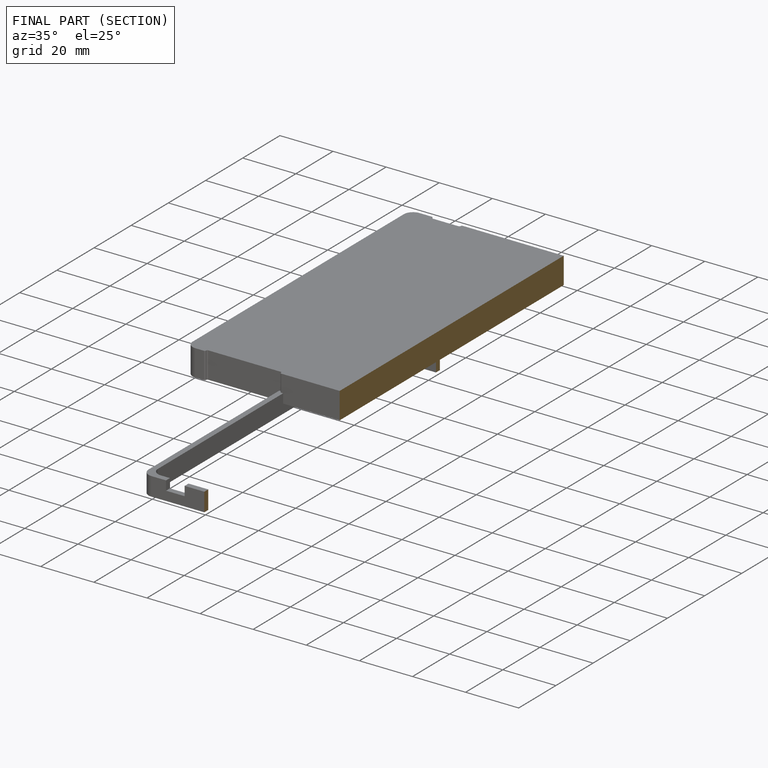
[diagram: finished part — half-section view (interior)]
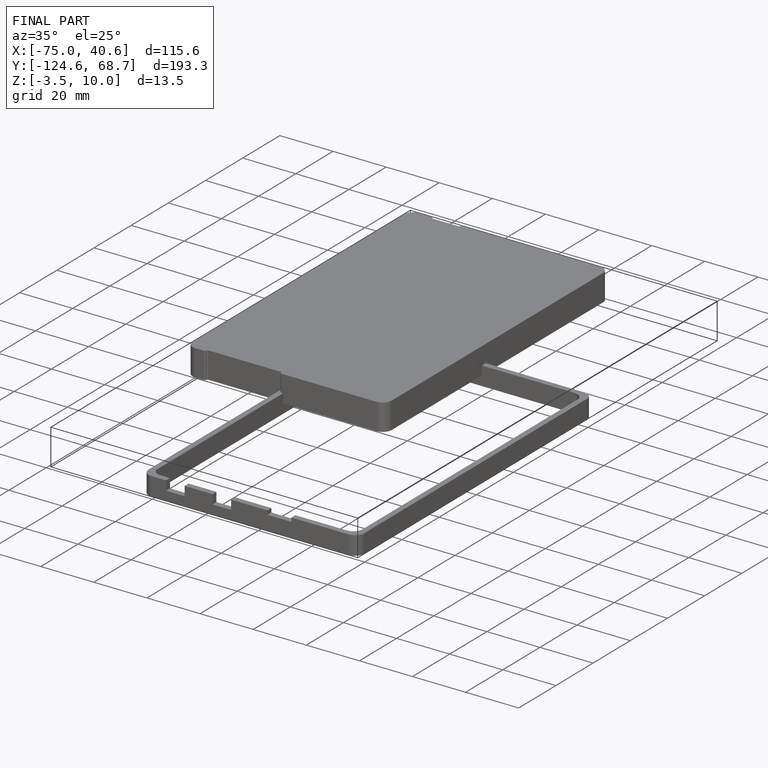
[diagram: finished part — iso view with bounding-box wireframe]
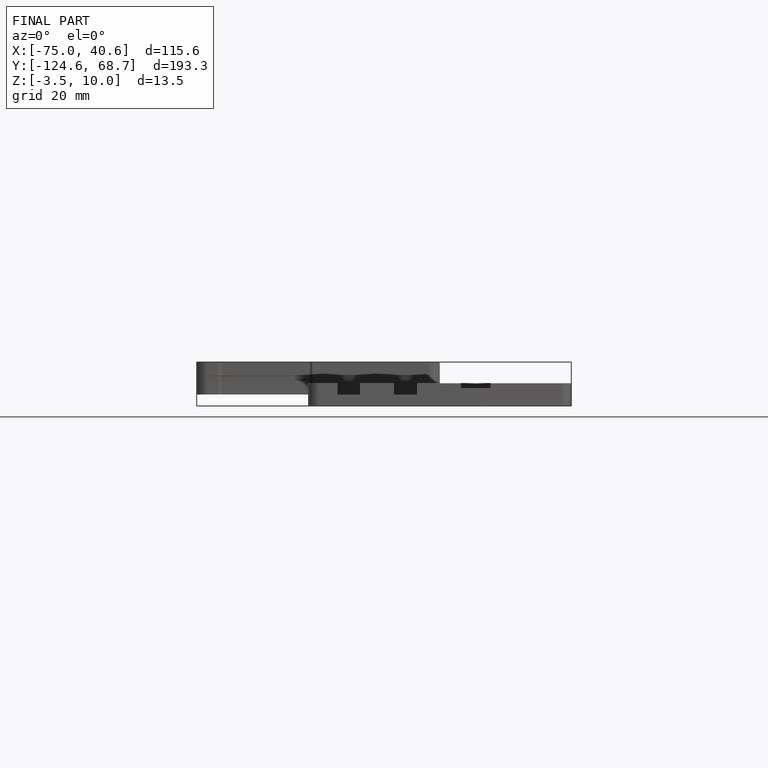
[diagram: finished part — front view with bounding-box wireframe]
